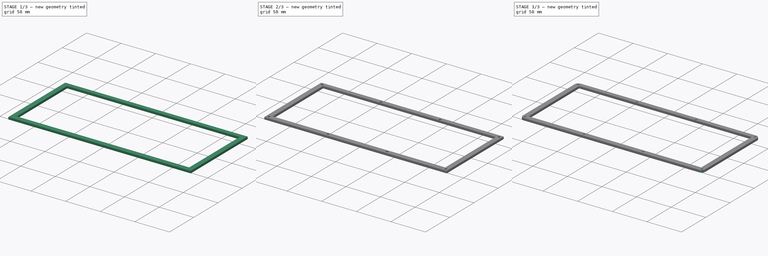
[diagram: build sequence overview — one tinted view per stage of 3, left to right]
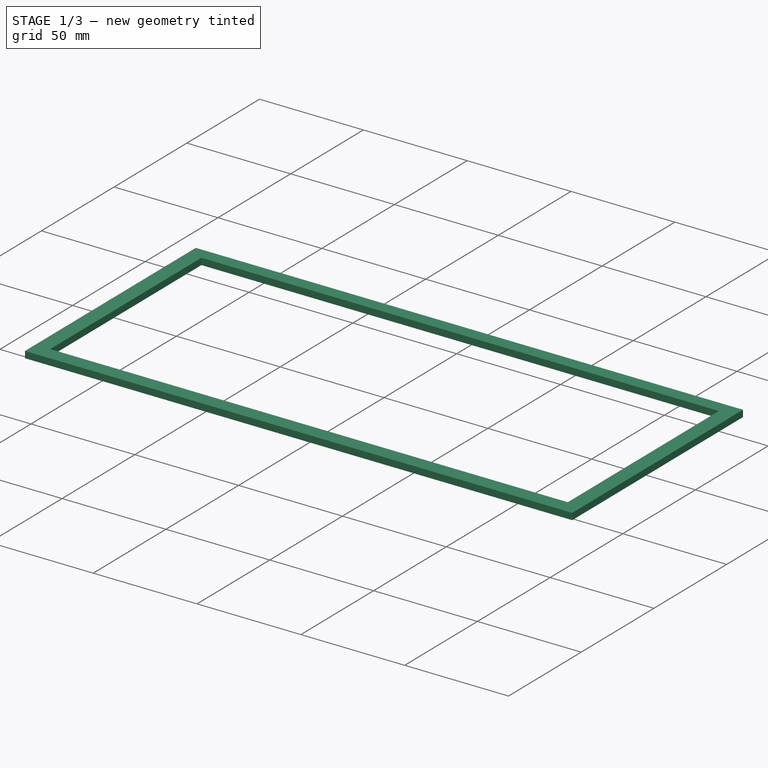
[diagram: stage 1 of 3 — iso view after this stage's code; geometry added in this stage tinted green]
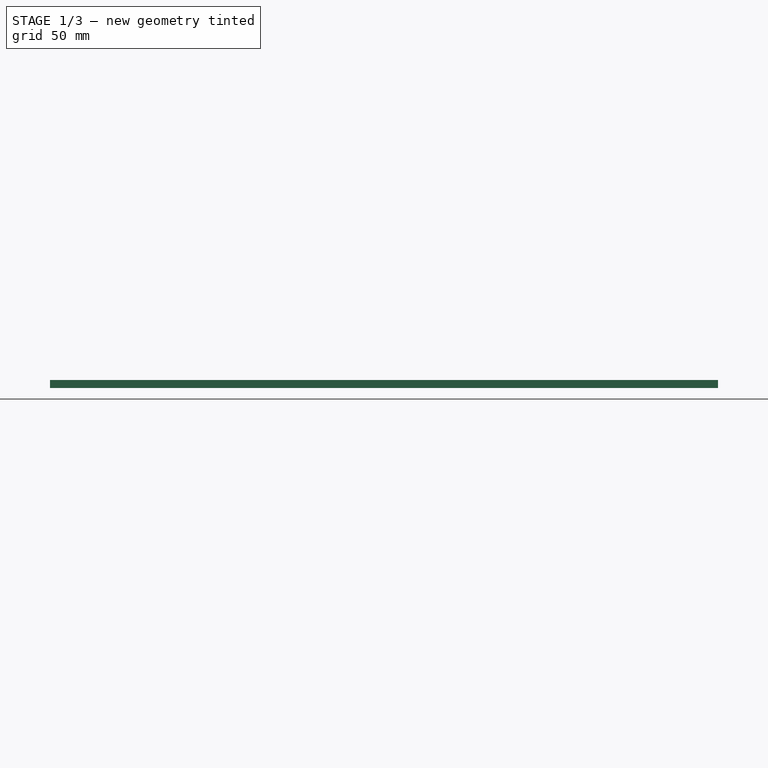
[diagram: stage 1 of 3 — front view after this stage's code; geometry added in this stage tinted green]
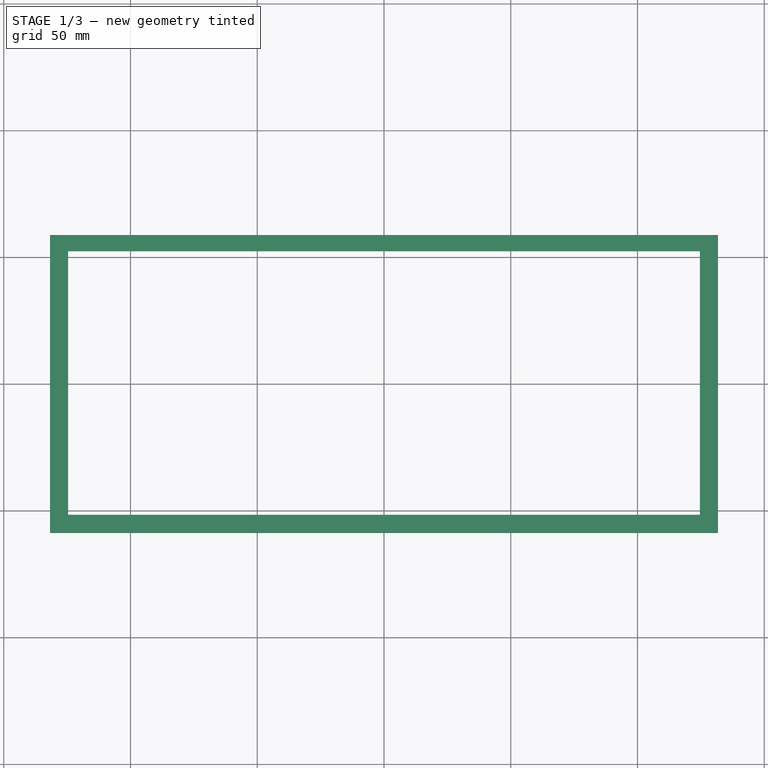
[diagram: stage 1 of 3 — top view after this stage's code; geometry added in this stage tinted green]
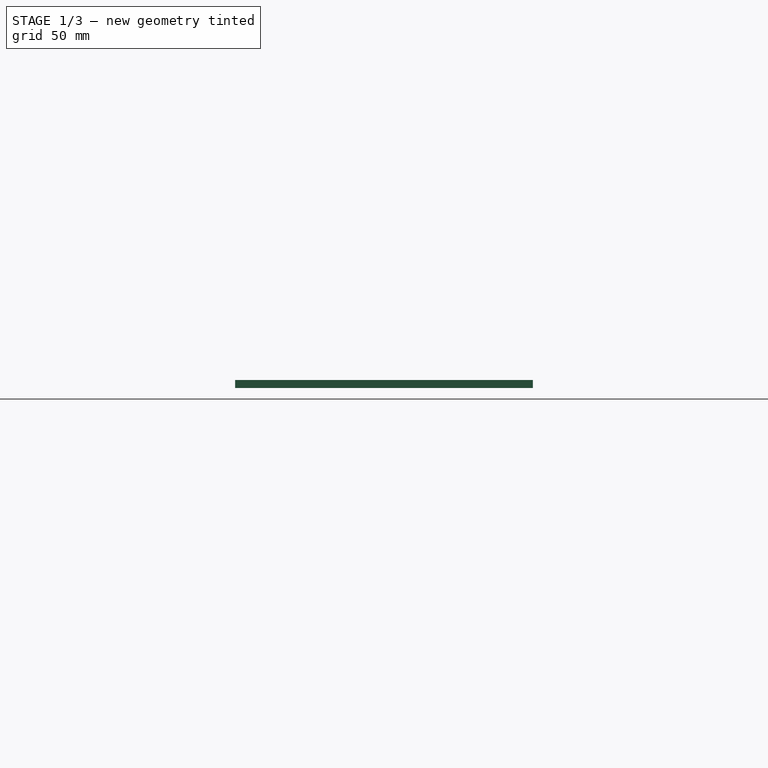
[diagram: stage 1 of 3 — right view after this stage's code; geometry added in this stage tinted green]
FCSTD DOCUMENT  (FreeCAD 0.19R22756 (Git))
Label: Y7X_ClosedSpacer
License: Attribution-NonCommercial 4.0 International
LicenseURL: <a rel="license" href="http://creativecommons.org/licenses/by-nc/4.0/"><img alt="Creative Commons License" style="border-width:0" src="https://i.creativecommons.org/l/by-nc/4.0/88x31.png" /></a><br />... (+174 chars)
objects: Sketcher::SketchObject×3, PartDesign::Fillet×2, PartDesign::Pad×1, Spreadsheet::Sheet×1, PartDesign::Pocket×1, PartDesign::Hole×1, PartDesign::Body×1, PartDesign::CoordinateSystem×1, App::Part×1, TechDraw::DrawSVGTemplate×1, TechDraw::DrawViewPart×1, TechDraw::DrawPage×1
note: 15 computed .brp shape members not serialized (recipe doc carries the construction recipe); baked Part::Feature solids carry a one-line shape summary decoded from their .brp

FEATURE [Sketcher::SketchObject] Sketch
  MapMode = 5
  Support = -> [XY_Plane]
  sketch-geometry (17):
    g0: LineSegment StartX=-131.762 StartY=-58.7375 StartZ=0 EndX=131.762 EndY=-58.7375 EndZ=0
    g1: LineSegment StartX=131.762 StartY=-58.7375 StartZ=0 EndX=131.762 EndY=58.7375 EndZ=0
    g2: LineSegment StartX=131.762 StartY=58.7375 StartZ=0 EndX=-131.762 EndY=58.7375 EndZ=0
    g3: LineSegment StartX=-131.762 StartY=58.7375 StartZ=0 EndX=-131.762 EndY=-58.7375 EndZ=0
    g4: LineSegment [constr] StartX=-131.762 StartY=58.7375 StartZ=0 EndX=131.762 EndY=-58.7375 EndZ=0
    g5: GeomPoint X=0 Y=0 Z=0
    g6: GeomPoint X=-63.8969 Y=54.7687 Z=0
    g7: GeomPoint X=-3.7e-15 Y=54.7687 Z=0
    g8: LineSegment [constr] StartX=-131.762 StartY=5.3e-15 StartZ=0 EndX=131.762 EndY=4.9e-15 EndZ=0
    g9: LineSegment [constr] StartX=-127.794 StartY=54.7687 StartZ=0 EndX=127.794 EndY=54.7687 EndZ=0
    g10: LineSegment [constr] StartX=127.794 StartY=54.7687 StartZ=0 EndX=127.794 EndY=-54.7687 EndZ=0
    g11: LineSegment [constr] StartX=127.794 StartY=-54.7687 StartZ=0 EndX=-127.794 EndY=-54.7687 EndZ=0
    g12: LineSegment [constr] StartX=-127.794 StartY=-54.7687 StartZ=0 EndX=-127.794 EndY=54.7687 EndZ=0
    g13: GeomPoint X=63.8969 Y=54.7687 Z=0
    g14: GeomPoint X=-63.8969 Y=-54.7687 Z=0
    g15: GeomPoint X=63.8969 Y=-54.7687 Z=0
    g16: GeomPoint X=-2.5e-15 Y=-54.7687 Z=0
  constraints (34):
    c: Coincident(g0,g1)
    c: Coincident(g1,g2)
    c: Coincident(g2,g3)
    c: Coincident(g3,g0)
    c: Horizontal(g0)
    c: Horizontal(g2)
    c: Vertical(g1)
    c: Vertical(g3)
    c: Coincident(g4,g2)
    c: Coincident(g4,g0)
    c: Symmetric(g2,g0,g5)
    c: Coincident(g5,g-1)
    c: DistanceX(g2,g2) = 263.525
    c: DistanceY(g1,g1) = 117.475
    c: Symmetric(g1,g0,g8)
    c: Symmetric(g2,g0,g8)
    c: Coincident(g9,g10)
    c: Coincident(g10,g11)
    c: Coincident(g11,g12)
    c: Coincident(g12,g9)
    c: Horizontal(g9)
    c: Horizontal(g11)
    c: Vertical(g10)
    c: Vertical(g12)
    c: DistanceY(g9,g2) = 3.96875
    c: DistanceX(g2,g9) = 3.96875
    c: DistanceX(g10,g0) = 3.96875
    c: DistanceY(g0,g10) = 3.96875
    c: Symmetric(g9,g9,g7)
    c: Symmetric(g9,g7,g6)
    c: Symmetric(g7,g9,g13)
    c: Symmetric(g11,g10,g16)
    c: Symmetric(g16,g11,g14)
    c: Symmetric(g16,g10,g15)
FEATURE [PartDesign::Pad] Pad  label="Base Sheet"
  Direction = (1,1,1)
  Length = 3.175
  Length2 = 99.9998
  Profile = -> Sketch
  Type = 0
FEATURE [Sketcher::SketchObject] Sketch001
  ExternalGeometry = -> [Pad]
  MapMode = 5
  Placement = pos=(0,0,3.175) rot=(0,0,1;0rad)
  Support = -> [Pad]
  sketch-geometry (18):
    g0: LineSegment [constr] StartX=-127.794 StartY=54.7687 StartZ=0 EndX=127.794 EndY=54.7687 EndZ=0
    g1: LineSegment [constr] StartX=127.794 StartY=54.7687 StartZ=0 EndX=127.794 EndY=-54.7687 EndZ=0
    g2: LineSegment [constr] StartX=127.794 StartY=-54.7687 StartZ=0 EndX=-127.794 EndY=-54.7687 EndZ=0
    g3: LineSegment [constr] StartX=-127.794 StartY=-54.7687 StartZ=0 EndX=-127.794 EndY=54.7687 EndZ=0
    g4: Circle CenterX=-42.5979 CenterY=54.7687 CenterZ=0 NormalX=0 NormalY=0 NormalZ=1 AngleXU=0 Radius=11.2464
    g5: Circle CenterX=42.5979 CenterY=54.7687 CenterZ=0 NormalX=0 NormalY=0 NormalZ=1 AngleXU=0 Radius=4.79813
    g6: Circle CenterX=42.5979 CenterY=-54.7687 CenterZ=0 NormalX=0 NormalY=0 NormalZ=1 AngleXU=0 Radius=5.8285
    g7: Circle CenterX=-42.5979 CenterY=-54.7687 CenterZ=0 NormalX=0 NormalY=0 NormalZ=1 AngleXU=0 Radius=9.38922
    g8: Circle CenterX=-127.794 CenterY=-54.7687 CenterZ=0 NormalX=0 NormalY=0 NormalZ=1 AngleXU=0 Radius=7.36111
    g9: Circle CenterX=-127.794 CenterY=54.7687 CenterZ=0 NormalX=0 NormalY=0 NormalZ=1 AngleXU=0 Radius=6.28062
    g10: Circle CenterX=127.794 CenterY=54.7687 CenterZ=0 NormalX=0 NormalY=0 NormalZ=1 AngleXU=0 Radius=5.36446
    g11: Circle CenterX=127.794 CenterY=-54.7687 CenterZ=0 NormalX=0 NormalY=0 NormalZ=1 AngleXU=0 Radius=6.88823
    g12: LineSegment [constr] StartX=-127.794 StartY=54.7687 StartZ=0 EndX=-42.5979 EndY=54.7687 EndZ=0
    g13: LineSegment [constr] StartX=-42.5979 StartY=54.7687 StartZ=0 EndX=42.5979 EndY=54.7687 EndZ=0
    g14: LineSegment [constr] StartX=42.5979 StartY=54.7687 StartZ=0 EndX=127.794 EndY=54.7687 EndZ=0
    g15: LineSegment [constr] StartX=-127.794 StartY=-54.7687 StartZ=0 EndX=-42.5979 EndY=-54.7687 EndZ=0
    g16: LineSegment [constr] StartX=-42.5979 StartY=-54.7687 StartZ=0 EndX=42.5979 EndY=-54.7687 EndZ=0
    g17: LineSegment [constr] StartX=42.5979 StartY=-54.7687 StartZ=0 EndX=127.794 EndY=-54.7687 EndZ=0
  constraints (36):
    c: Coincident(g0,g1)
    c: Coincident(g1,g2)
    c: Coincident(g2,g3)
    c: Coincident(g3,g0)
    c: Horizontal(g0)
    c: Horizontal(g2)
    c: Vertical(g1)
    c: Vertical(g3)
    c: Coincident(g12,g9)
    c: Coincident(g12,g4)
    c: Coincident(g13,g4)
    c: Coincident(g13,g5)
    c: Horizontal(g13)
    c: Coincident(g14,g10)
    c: Coincident(g5,g14)
    c: Equal(g12,g13)
    c: Equal(g13,g14)
    c: Coincident(g9,g0)
    c: Coincident(g10,g0)
    c: Coincident(g11,g1)
    c: Coincident(g8,g2)
    c: PointOnObject(g4,g0)
    c: Coincident(g15,g8)
    c: Coincident(g15,g7)
    c: Coincident(g16,g7)
    c: Coincident(g16,g6)
    c: Coincident(g17,g6)
    c: Coincident(g17,g11)
    c: Equal(g15,g16)
    c: Equal(g16,g17)
    c: PointOnObject(g6,g2)
    c: PointOnObject(g7,g2)
    c: DistanceY(g9,g-3) = 3.96875
    c: DistanceX(g-3,g9) = 3.96875
    c: DistanceX(g11,g-4) = 3.96875
    c: DistanceY(g-4,g11) = 3.96875
FEATURE [Spreadsheet::Sheet] Spreadsheet
  cells = A1(cutOutWidth)==0.55in; A2(acrylicWidth)==0.3125in
FEATURE [Sketcher::SketchObject] Sketch002
  ExternalGeometry = -> [Pad]
  MapMode = 5
  Placement = pos=(0,0,3.175) rot=(0,0,1;0rad)
  Support = -> [Pad]
  sketch-geometry (13):
    g0: LineSegment [constr] StartX=-123.825 StartY=51.5937 StartZ=0 EndX=123.825 EndY=51.5937 EndZ=0
    g1: LineSegment [constr] StartX=123.825 StartY=51.5937 StartZ=0 EndX=123.825 EndY=-50.8 EndZ=0
    g2: LineSegment [constr] StartX=123.825 StartY=-50.8 StartZ=0 EndX=-123.825 EndY=-50.8 EndZ=0
    g3: LineSegment [constr] StartX=-123.825 StartY=-50.8 StartZ=0 EndX=-123.825 EndY=51.5937 EndZ=0
    g4: GeomPoint X=1.06e-14 Y=58.7375 Z=0
    g5: GeomPoint X=1.06e-14 Y=51.5938 Z=0
    g6: LineSegment [constr] StartX=1.06e-14 StartY=58.7375 StartZ=0 EndX=1.06e-14 EndY=51.5938 EndZ=0
    g7: LineSegment StartX=-124.619 StartY=52.3875 StartZ=0 EndX=124.619 EndY=52.3875 EndZ=0
    g8: LineSegment StartX=124.619 StartY=52.3875 StartZ=0 EndX=124.619 EndY=-51.5937 EndZ=0
    g9: LineSegment StartX=124.619 StartY=-51.5938 StartZ=0 EndX=-124.619 EndY=-51.5938 EndZ=0
    g10: LineSegment StartX=-124.619 StartY=-51.5938 StartZ=0 EndX=-124.619 EndY=52.3875 EndZ=0
    g11: LineSegment [constr] StartX=123.825 StartY=51.5937 StartZ=0 EndX=124.619 EndY=52.3875 EndZ=0
    g12: LineSegment [constr] StartX=-123.825 StartY=-50.8 StartZ=0 EndX=-124.619 EndY=-51.5938 EndZ=0
  constraints (33):
    c: Coincident(g0,g1)
    c: Coincident(g1,g2)
    c: Coincident(g2,g3)
    c: Coincident(g3,g0)
    c: Horizontal(g0)
    c: Horizontal(g2)
    c: Vertical(g1)
    c: Vertical(g3)
    c: DistanceX(g0,g0) = 247.65
    c: Symmetric(g-3,g-5,g4)
    c: Symmetric(g0,g0,g5)
    c: Coincident(g6,g4)
    c: Coincident(g6,g5)
    c: Perpendicular(g0,g6)
    c: DistanceY(g5,g4) = 7.14375
    c: Coincident(g7,g8)
    c: Coincident(g8,g9)
    c: Coincident(g9,g10)
    c: Coincident(g10,g7)
    c: Horizontal(g7)
    c: Horizontal(g9)
    c: Vertical(g8)
    c: Vertical(g10)
    c: Coincident(g11,g0)
    c: Coincident(g11,g7)
    c: Angle(g11,g8) = 0.785398
    c: Coincident(g12,g2)
    c: Coincident(g12,g9)
    c: Angle(g9,g12) = 0.785398
    c: Equal(g11,g12)
    c: DistanceY(g0,g7) = 0.79375
    c: DistanceX(g-3,g7) = 7.14375
    c: DistanceY(g-4,g8) = 7.14375
FEATURE [PartDesign::Pocket] Pocket  label="Inner Pocket"
  BaseFeature = -> Pad
  Length = 5.00126
  Length2 = 99.9998
  Profile = -> Sketch002
  Type = 1
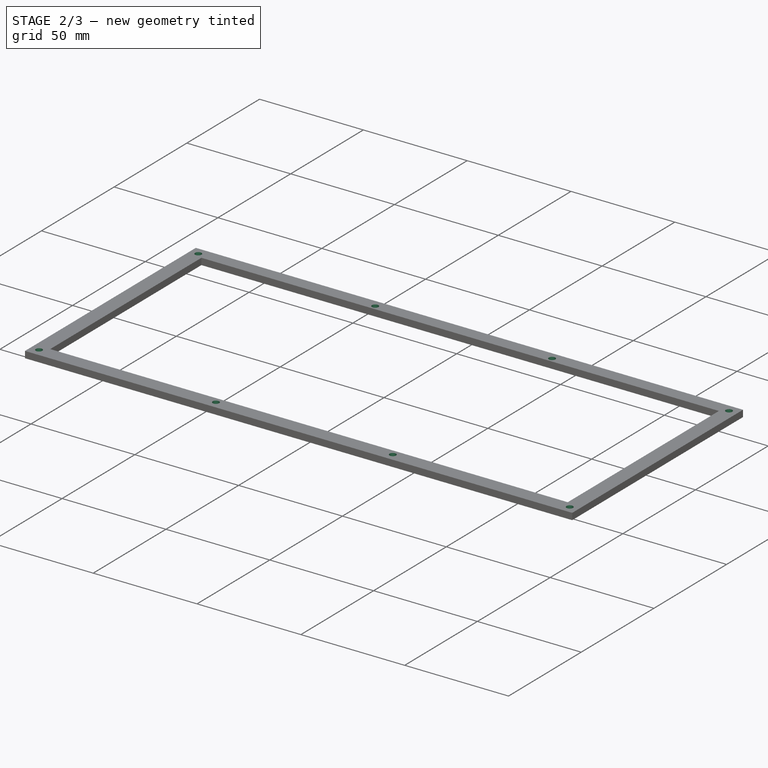
[diagram: stage 2 of 3 — iso view after this stage's code; geometry added in this stage tinted green]
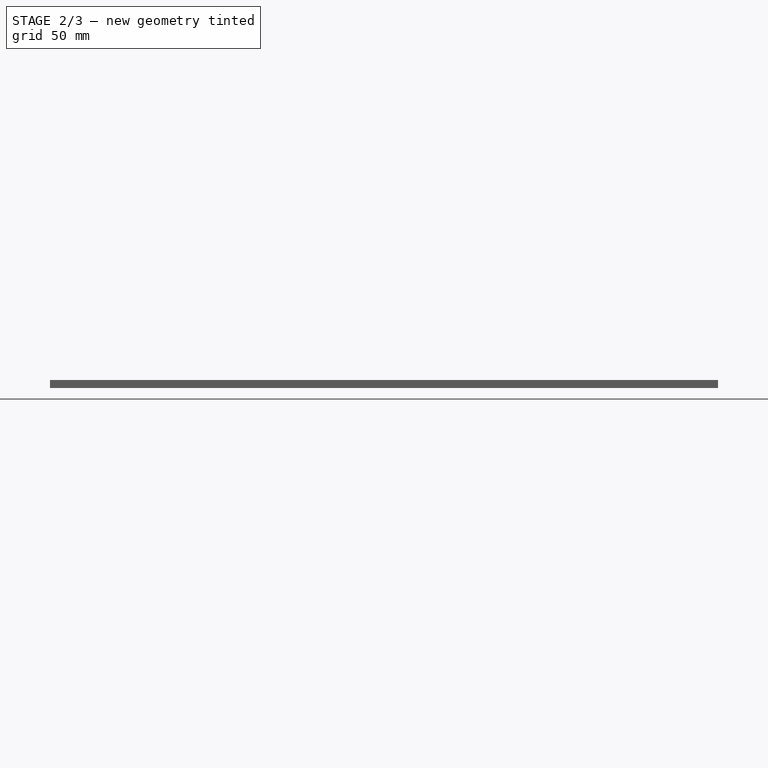
[diagram: stage 2 of 3 — front view after this stage's code; geometry added in this stage tinted green]
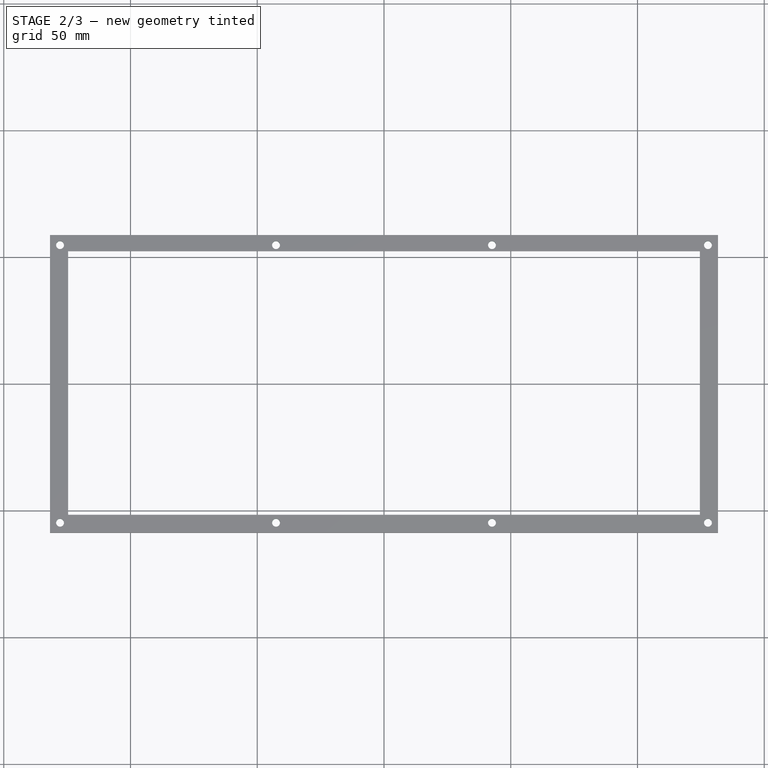
[diagram: stage 2 of 3 — top view after this stage's code; geometry added in this stage tinted green]
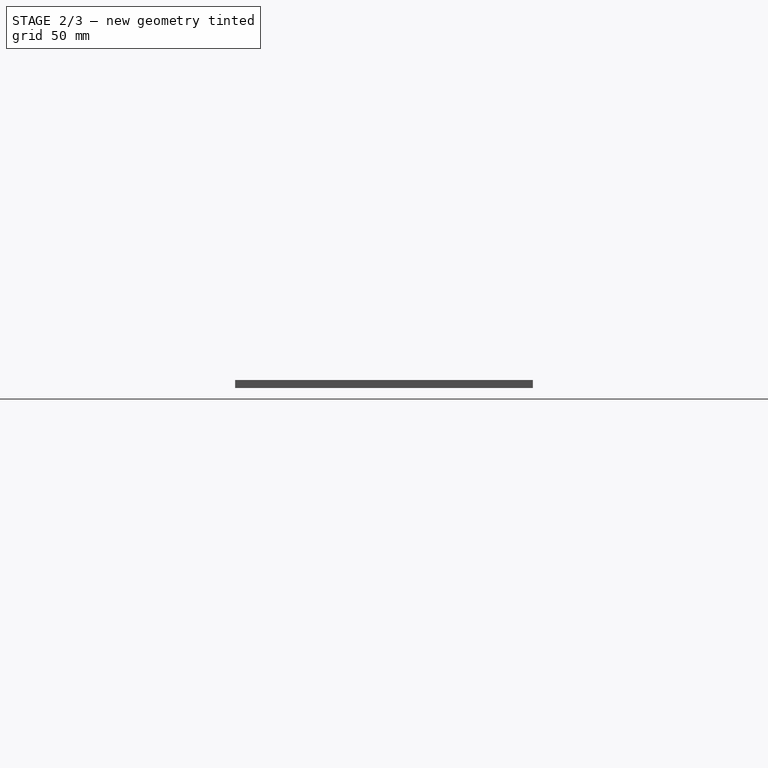
[diagram: stage 2 of 3 — right view after this stage's code; geometry added in this stage tinted green]
FEATURE [PartDesign::Hole] Hole  label="Mounting Holes"
  BaseFeature = -> Pocket
  Depth = 25
  DepthType = 1
  Diameter = 3.0988
  DrillPoint = 1
  DrillPointAngle = 118
  HoleCutCountersinkAngle = 90
  HoleCutDepth = 0
  HoleCutDiameter = 0
  HoleCutType = 0
  ModelActualThread = false
  Profile = -> Sketch001
  Tapered = false
  TaperedAngle = 90
  ThreadAngle = 0
  ThreadClass = 0
  ThreadCutOffInner = 0
  ThreadCutOffOuter = 0
  ThreadDirection = 0
  ThreadFit = 0
  ThreadPitch = 0
  ThreadSize = 0
  ThreadType = 0
  Threaded = false
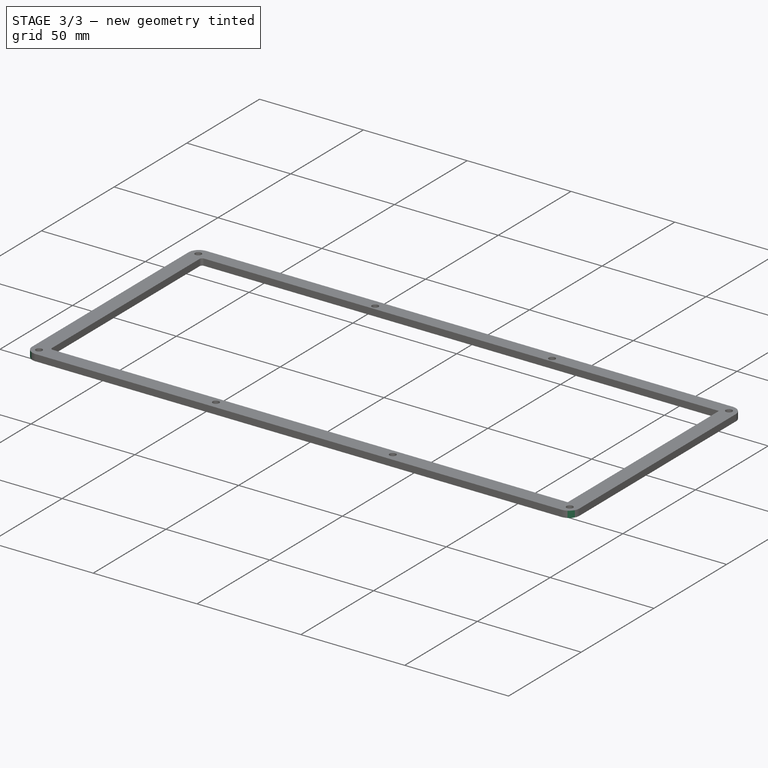
[diagram: stage 3 of 3 — iso view after this stage's code; geometry added in this stage tinted green]
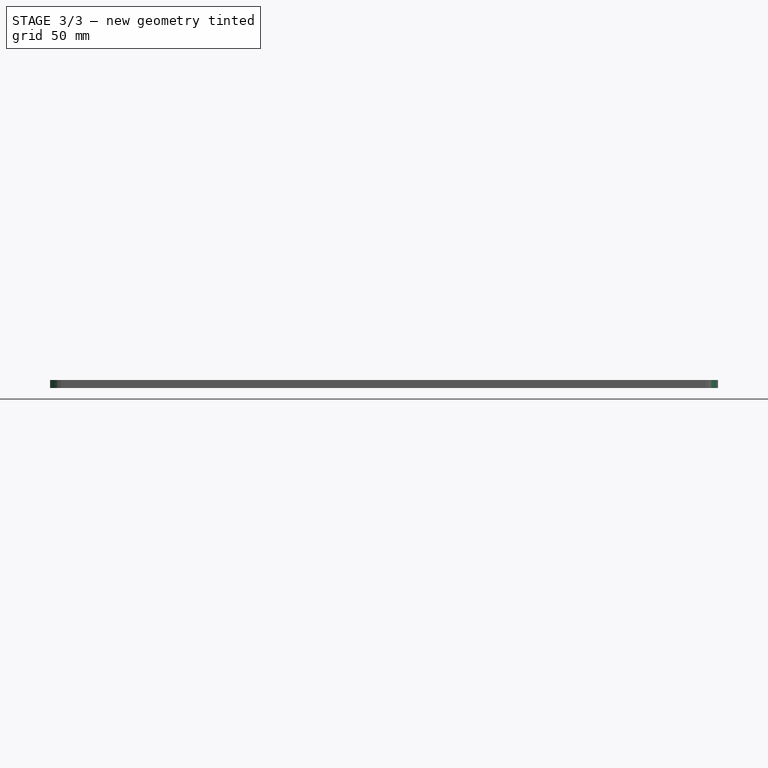
[diagram: stage 3 of 3 — front view after this stage's code; geometry added in this stage tinted green]
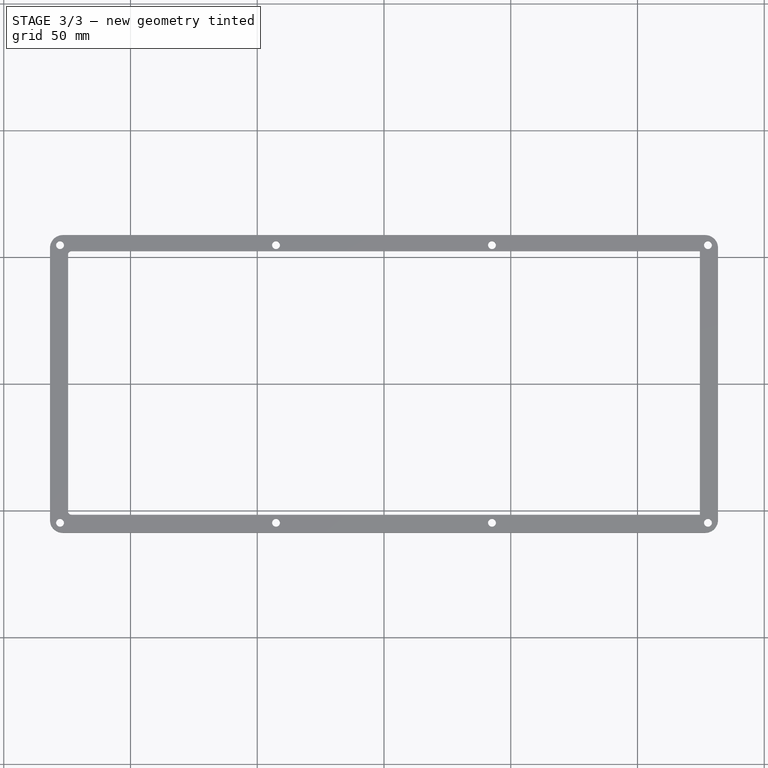
[diagram: stage 3 of 3 — top view after this stage's code; geometry added in this stage tinted green]
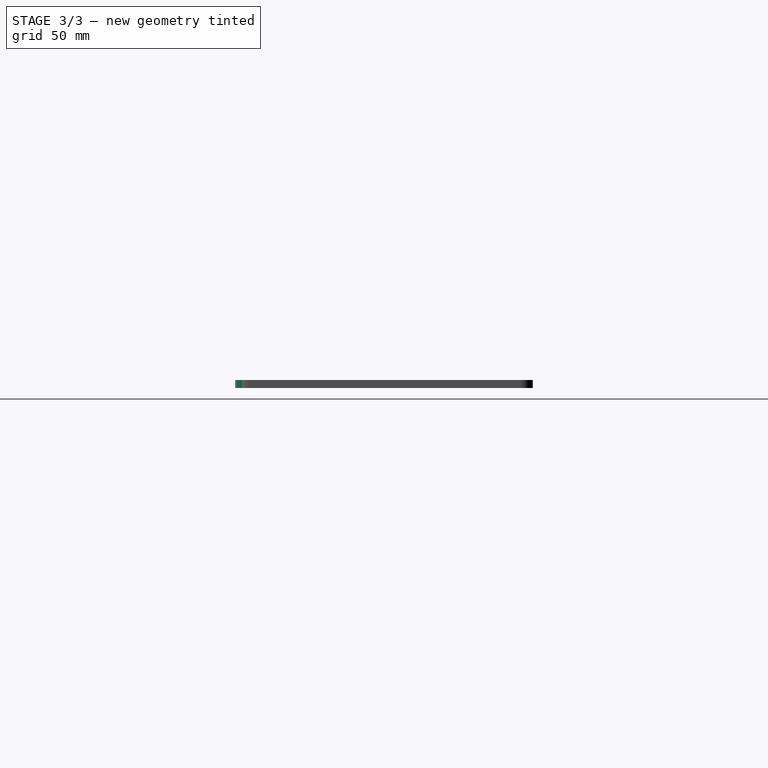
[diagram: stage 3 of 3 — right view after this stage's code; geometry added in this stage tinted green]
FEATURE [PartDesign::Fillet] Fillet  label="Outter Fillet"
  Base = -> Hole [Edge5,Edge1,Edge2,Edge8]
  BaseFeature = -> Hole
  Radius = 5.08
  SupportTransform = false
FEATURE [PartDesign::Fillet] Fillet001  label="Inner Fillet"
  Base = -> Fillet [Edge56,Edge54,Edge53,Edge55]
  BaseFeature = -> Fillet
  Radius = 1.27
  SupportTransform = false
FEATURE [PartDesign::Body] Body
  Group = -> [Sketch,Pad,Pocket,Hole,Sketch002,Fillet,Fillet001]
  Origin = -> Origin
  Tip = -> Fillet001
FEATURE [PartDesign::CoordinateSystem] LCS_0
  AttacherType = Attacher::AttachEngine3D
  MapMode = 2
  Support = -> [X_Axis001]
FEATURE [App::Part] Part
  Group = -> [LCS_0,Body]
  Origin = -> Origin001
FEATURE [TechDraw::DrawSVGTemplate] Template
  Height = 210
  Orientation = 1
  Width = 297
FEATURE [TechDraw::DrawViewPart] View
  CoarseView = false
  Direction = (0,0,1)
  Focus = 100
  HardHidden = false
  IsoCount = 0
  IsoHidden = false
  IsoVisible = false
  LockPosition = false
  Perspective = false
  Rotation = 0
  ScaleType = 0
  SeamHidden = false
  SeamVisible = true
  SmoothHidden = false
  SmoothVisible = true
  Source = -> [Body]
  X = 148.5
  XDirection = (1,0,0)
  Y = 105
FEATURE [TechDraw::DrawPage] Page
  KeepUpdated = true
  NextBalloonIndex = 1
  ProjectionType = 0
  Template = -> Template
  Views = -> [View]
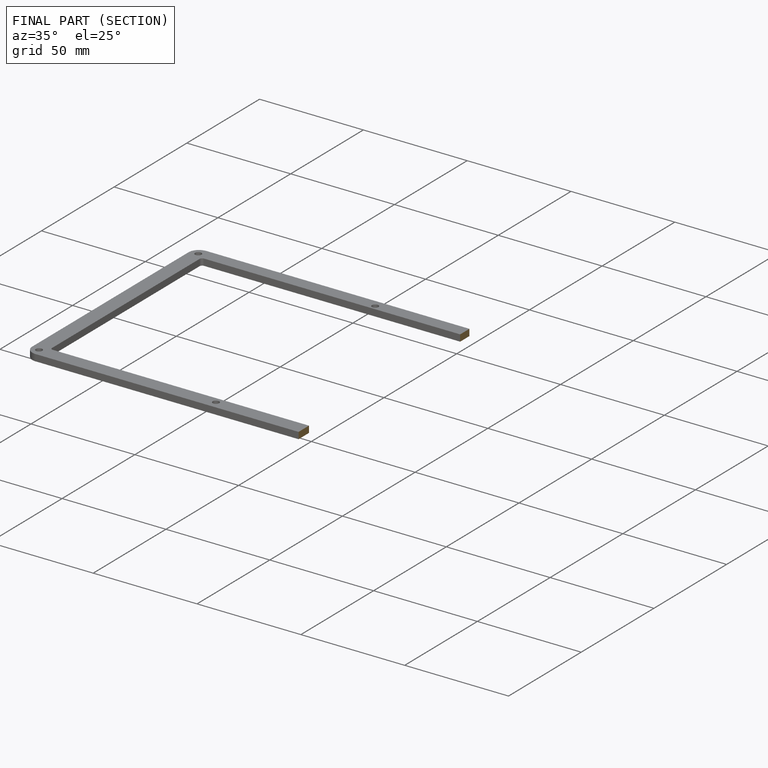
[diagram: finished part — half-section view (interior)]
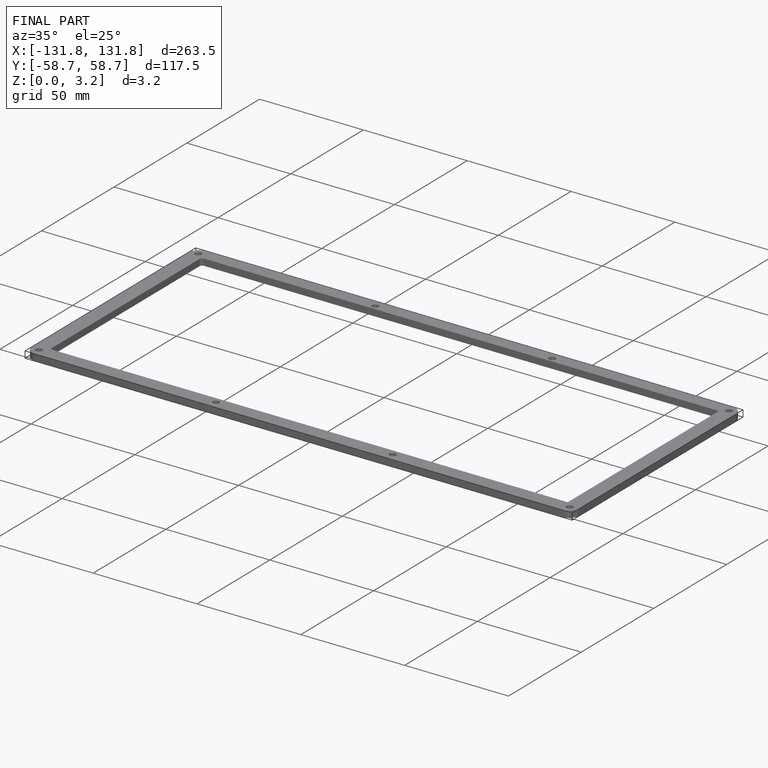
[diagram: finished part — iso view with bounding-box wireframe]
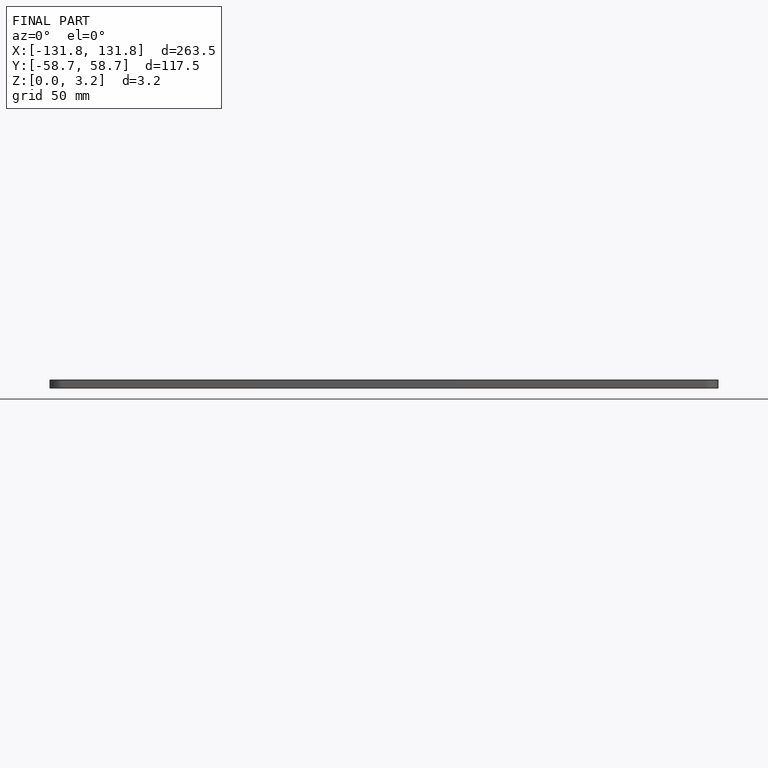
[diagram: finished part — front view with bounding-box wireframe]
